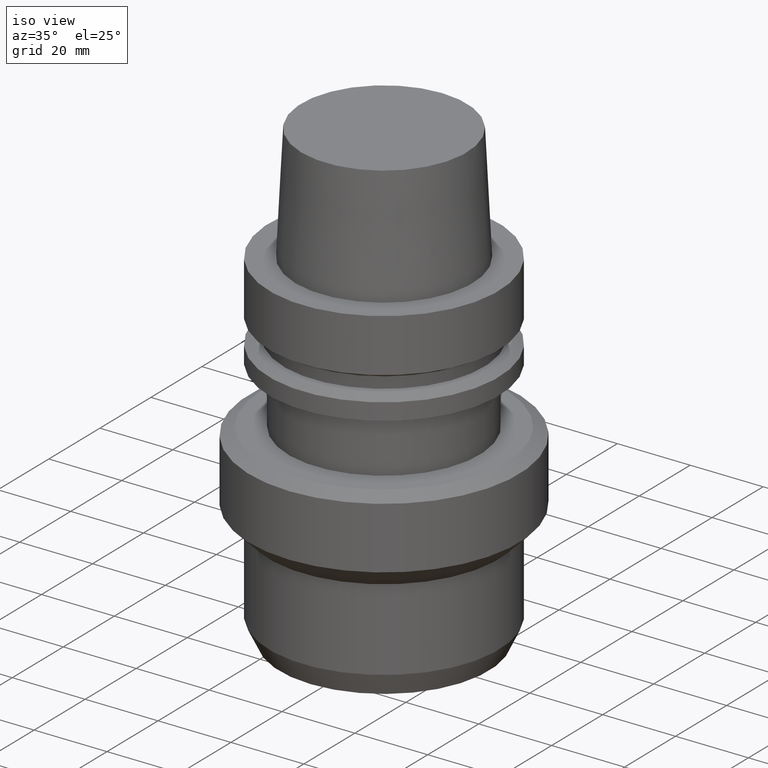
[diagram: clean part render]
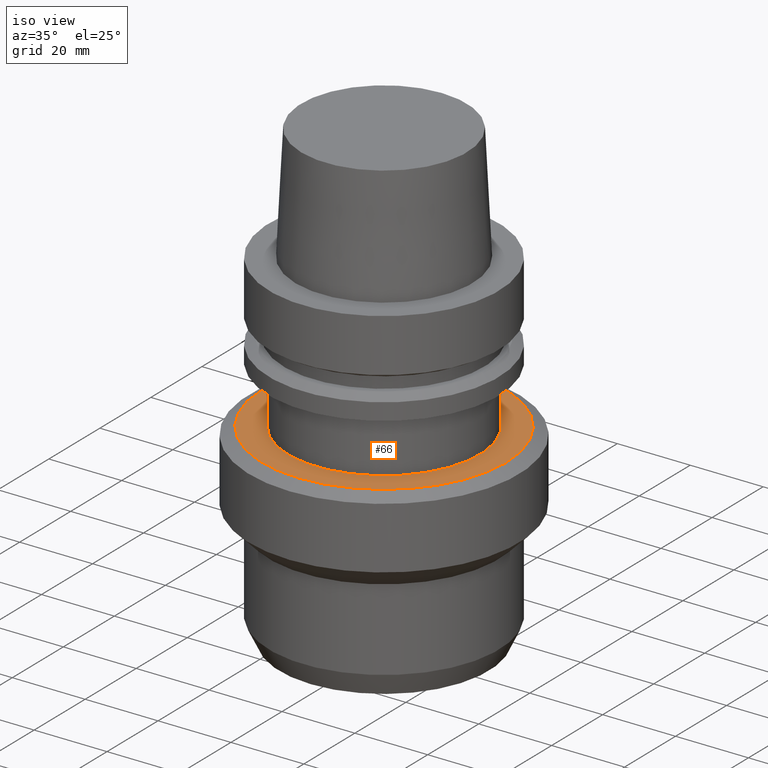
[diagram: same view with one face highlighted and labeled with its STEP entity id]
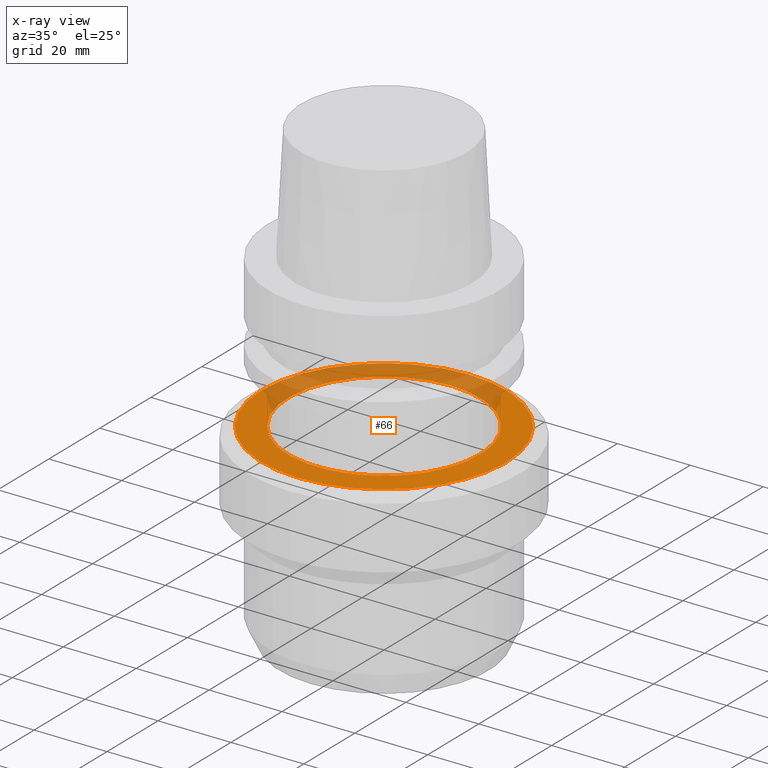
[diagram: x-ray of the same camera — body ghosted, the highlighted face saturated]
A machine part, iso view. The second image highlights one B-rep face of the part: STEP entity #66.
The next image is the same camera in x-ray: the body ghosted, the highlighted face saturated — about 34% of this face is hidden behind the body in this view.
In plain terms, the highlighted planar face has unit normal (-0, -0, 1).
Its self-contained STEP definition (entity closure, byte-faithful):
#66=ADVANCED_FACE('Unnamed[1]',(#180,#181),#182,.T.);
#89=EDGE_CURVE('Unnamed[1]',#215,#215,#216,.T.);
#154=EDGE_CURVE('Unnamed[1]',#318,#318,#319,.T.);
#180=FACE_OUTER_BOUND('',#338,.T.);
#181=FACE_BOUND('',#339,.T.);
#182=PLANE('',#340);
#215=VERTEX_POINT('',#381);
#216=CIRCLE('',#382,33.5358983848622);
#318=VERTEX_POINT('',#510);
#319=CIRCLE('',#511,26.3);
#338=EDGE_LOOP('',(#524));
#339=EDGE_LOOP('',(#525));
#340=AXIS2_PLACEMENT_3D('',#526,#527,#528);
#381=CARTESIAN_POINT('',(2.57175827820699E-015,33.5358983848622,-41.99999999996));
#382=AXIS2_PLACEMENT_3D('',#562,#563,#564);
#510=CARTESIAN_POINT('',(2.571758278207E-015,26.3,-41.9999999999601));
#511=AXIS2_PLACEMENT_3D('',#678,#679,#680);
#524=ORIENTED_EDGE('',*,*,#89,.F.);
#525=ORIENTED_EDGE('',*,*,#154,.T.);
#526=CARTESIAN_POINT('',(2.571758278207E-015,29.9179491924311,-41.9999999999601));
#527=DIRECTION('',(-6.12323399573677E-017,-6.01427822925854E-015,1.0));
#528=DIRECTION('',(3.73095481862923E-031,-1.0,-6.01427822925854E-015));
#562=CARTESIAN_POINT('',(2.571758278207E-015,7.61287419320394E-015,-41.99999999996));
#563=DIRECTION('',(6.12323399573677E-017,7.79108829899063E-017,-1.0));
#564=DIRECTION('',(-9.59781840438566E-033,1.0,7.79108829899063E-017));
#678=CARTESIAN_POINT('',(2.571758278207E-015,7.61287419320394E-015,-41.9999999999601));
#679=DIRECTION('',(6.12323399573677E-017,7.79108829899064E-017,-1.0));
#680=DIRECTION('',(-9.59781840438566E-033,1.0,7.79108829899063E-017));